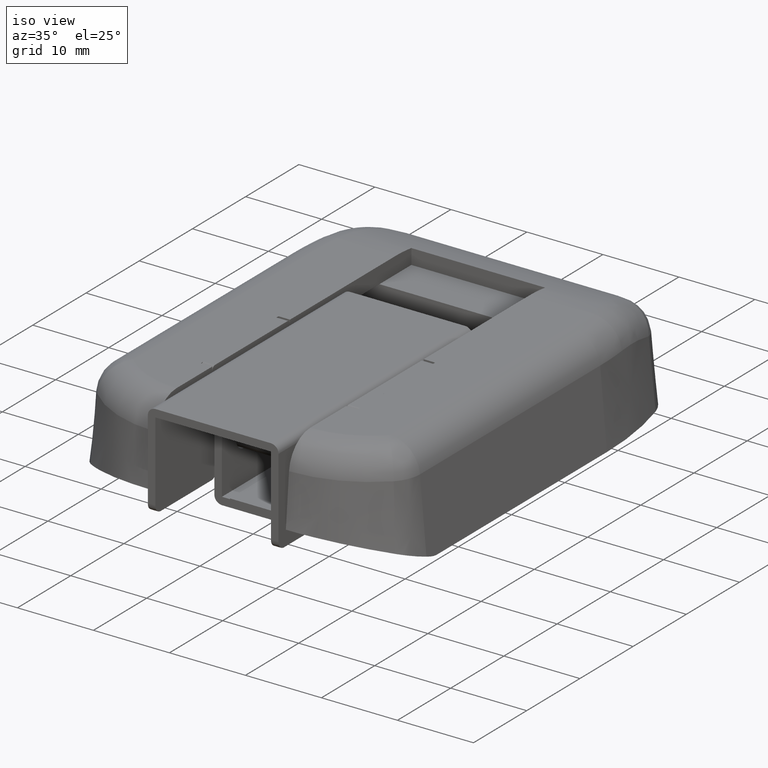
[diagram: clean part render]
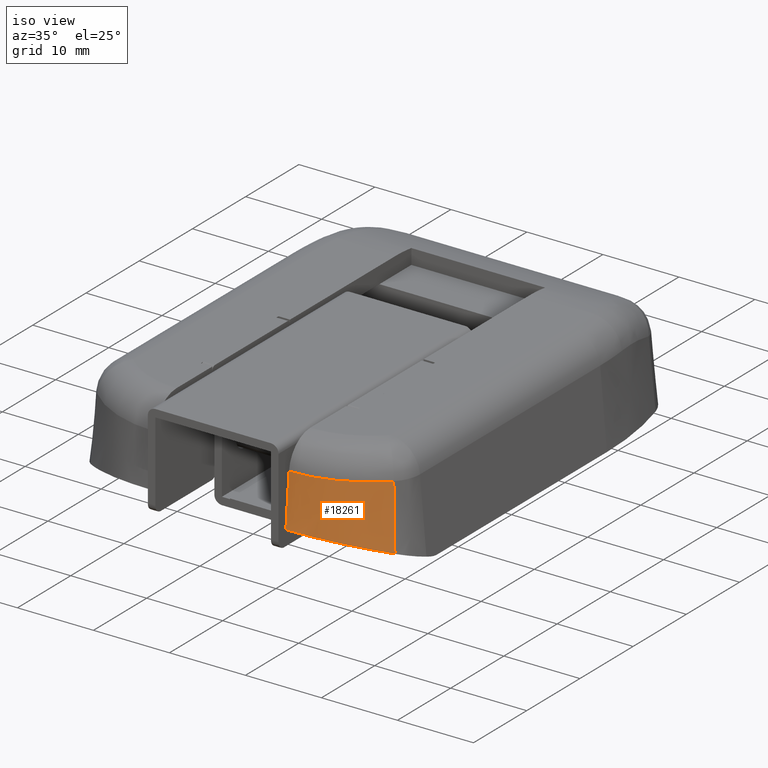
[diagram: same view with one face highlighted and labeled with its STEP entity id]
A machine part, iso view. The second image highlights one B-rep face of the part: STEP entity #18261.
In plain terms, the highlighted conical surface has half-angle 5 deg.
Its self-contained STEP definition (entity closure, byte-faithful):
#606 = CARTESIAN_POINT ( 'NONE',  ( 19.29999999999999000, 4.287857357185717300, 0.0000000000000000000 ) ) ;
#1009 = ORIENTED_EDGE ( 'NONE', *, *, #9509, .F. ) ;
#1176 = EDGE_LOOP ( 'NONE', ( #20878, #22969, #22634, #1009 ) ) ;
#3448 = CARTESIAN_POINT ( 'NONE',  ( 8.800000000000000700, 0.0000000000000000000, 0.0000000000000000000 ) ) ;
#5501 = DIRECTION ( 'NONE',  ( 0.0000000000000000000, 0.08715574274765837400, 0.9961946980917455500 ) ) ;
#5525 = VECTOR ( 'NONE', #5501, 1000.000000000000100 ) ;
#7546 = CARTESIAN_POINT ( 'NONE',  ( 20.03183340367640500, 3.541237946618287900, -11.94984868704174900 ) ) ;
#9417 =( BOUNDED_CURVE ( )  B_SPLINE_CURVE ( 3, ( #7546, #19925, #24033, #11710 ),
 .UNSPECIFIED., .F., .F. ) 
 B_SPLINE_CURVE_WITH_KNOTS ( ( 4, 4 ),
 ( 2.387578509889555400, 3.141592653589793100 ),
 .UNSPECIFIED. ) 
 CURVE ( )  GEOMETRIC_REPRESENTATION_ITEM ( )  RATIONAL_B_SPLINE_CURVE ( ( 1.000000000000000000, 0.9531804086163815400, 0.9531804086163815400, 1.000000000000000000 ) ) 
 REPRESENTATION_ITEM ( '' )  );
#9509 = EDGE_CURVE ( 'NONE', #16895, #26395, #21964, .T. ) ;
#10106 = AXIS2_PLACEMENT_3D ( 'NONE', #11248, #15417, #25650 ) ;
#11053 = CARTESIAN_POINT ( 'NONE',  ( 8.800000000000000700, -0.3194540962972892100, -3.651377029009366600 ) ) ;
#11248 = CARTESIAN_POINT ( 'NONE',  ( 8.800000000000000700, 15.00000000000000000, 0.0000000000000000000 ) ) ;
#11528 = CARTESIAN_POINT ( 'NONE',  ( 8.800000000000000700, 15.00000000000000000, -3.651377029009367000 ) ) ;
#11710 = CARTESIAN_POINT ( 'NONE',  ( 8.799999999999998900, -0.9080884258197432500, -10.37949820265185800 ) ) ;
#12915 = DIRECTION ( 'NONE',  ( -0.06100901992336080900, 0.06224164989688951700, 0.9961946980917455500 ) ) ;
#13539 = FACE_OUTER_BOUND ( 'NONE', #1176, .T. ) ;
#13603 = DIRECTION ( 'NONE',  ( -1.000000000000000000, 0.0000000000000000000, 0.0000000000000000000 ) ) ;
#14884 = VECTOR ( 'NONE', #12915, 1000.000000000000100 ) ;
#15260 = CIRCLE ( 'NONE', #18070, 15.31945409629728900 ) ;
#15417 = DIRECTION ( 'NONE',  ( -0.0000000000000000000, -0.0000000000000000000, -1.000000000000000000 ) ) ;
#16895 = VERTEX_POINT ( 'NONE', #17639 ) ;
#17639 = CARTESIAN_POINT ( 'NONE',  ( 8.799999999999998900, -0.9080884258197432500, -10.37949820265185800 ) ) ;
#17808 = EDGE_CURVE ( 'NONE', #22230, #16895, #9417, .T. ) ;
#18070 = AXIS2_PLACEMENT_3D ( 'NONE', #11528, #25934, #13603 ) ;
#18261 = ADVANCED_FACE ( 'NONE', ( #13539 ), #23176, .T. ) ;
#19081 = LINE ( 'NONE', #606, #14884 ) ;
#19925 = CARTESIAN_POINT ( 'NONE',  ( 16.95237529420036200, 0.6478696880965170200, -10.92865988991642100 ) ) ;
#20241 = CARTESIAN_POINT ( 'NONE',  ( 20.03183340367640500, 3.541237946618287900, -11.94984868704174900 ) ) ;
#20878 = ORIENTED_EDGE ( 'NONE', *, *, #17808, .F. ) ;
#21964 = LINE ( 'NONE', #3448, #5525 ) ;
#22230 = VERTEX_POINT ( 'NONE', #20241 ) ;
#22634 = ORIENTED_EDGE ( 'NONE', *, *, #24236, .T. ) ;
#22969 = ORIENTED_EDGE ( 'NONE', *, *, #25356, .T. ) ;
#23176 = CONICAL_SURFACE ( 'NONE', #10106, 15.00000000000000200, 0.08726646259971666800 ) ;
#24033 = CARTESIAN_POINT ( 'NONE',  ( 13.02453074971714600, -0.9080884258197466900, -10.37949820265186000 ) ) ;
#24236 = EDGE_CURVE ( 'NONE', #24636, #26395, #15260, .T. ) ;
#24636 = VERTEX_POINT ( 'NONE', #24730 ) ;
#24730 = CARTESIAN_POINT ( 'NONE',  ( 19.52361786740809200, 4.059721500694524600, -3.651377029009366600 ) ) ;
#25356 = EDGE_CURVE ( 'NONE', #22230, #24636, #19081, .T. ) ;
#25650 = DIRECTION ( 'NONE',  ( 1.000000000000000000, 0.0000000000000000000, 0.0000000000000000000 ) ) ;
#25934 = DIRECTION ( 'NONE',  ( -0.0000000000000000000, -0.0000000000000000000, -1.000000000000000000 ) ) ;
#26395 = VERTEX_POINT ( 'NONE', #11053 ) ;